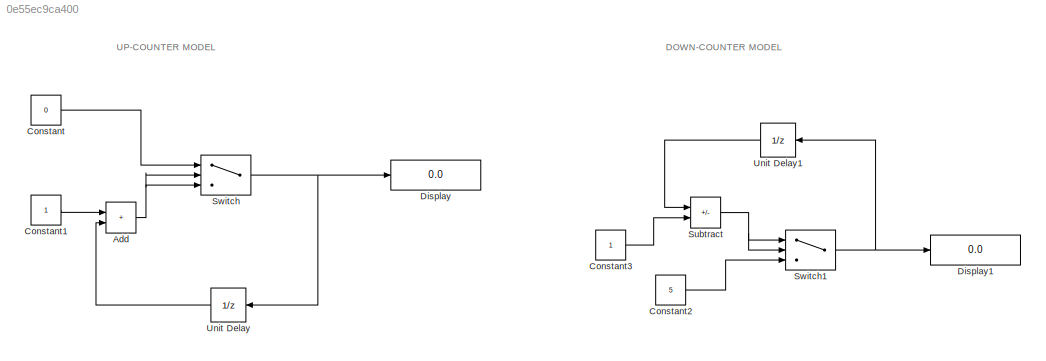
MODEL slx_0e55ec9ca400
KIND model
CONFIG AbsTol = auto
CONFIG EnableMultiTasking = off
CONFIG FixedStep = 0.5
CONFIG MaxStep = auto
CONFIG MinStep = auto
CONFIG RelTol = 1e-3
CONFIG SampleTimeConstraint = Unconstrained
CONFIG SolverName = FixedStepDiscrete
CONFIG StartTime = 0.0
CONFIG StopTime = 10.0
BLOCK [Sum] Add
  IconShape = rectangular
BLOCK [Constant] Constant
  Value = 0
BLOCK [Constant] Constant1
BLOCK [Constant] Constant2
  Value = 5
BLOCK [Constant] Constant3
BLOCK [Display] Display
  Decimation = 1
BLOCK [Display] Display1
  Decimation = 1
BLOCK [Sum] Subtract
  IconShape = rectangular
  Inputs = +-
BLOCK [Switch] Switch
  Criteria = u2 > Threshold
  InputSameDT = off
  SaturateOnIntegerOverflow = off
  Threshold = 5
BLOCK [Switch] Switch1
  InputSameDT = off
  SaturateOnIntegerOverflow = off
BLOCK [UnitDelay] Unit Delay
  HasFrameUpgradeWarning = on
  InitialCondition = -1
  NameLocation = top
  SampleTime = -1
BLOCK [UnitDelay] Unit Delay1
  HasFrameUpgradeWarning = on
  InitialCondition = 6
  NameLocation = top
  SampleTime = -1
ANNOTATION (root): DOWN-COUNTER MODEL
ANNOTATION (root): UP-COUNTER MODEL
NET Add:1 -> Switch:2, Switch:3
LINE Constant1:1 -> Add:1
LINE Constant2:1 -> Switch1:3
LINE Constant3:1 -> Subtract:2
LINE Constant:1 -> Switch:1
NET Subtract:1 -> Switch1:1, Switch1:2
NET Switch1:1 -> Display1:1, Unit Delay1:1
NET Switch:1 -> Display:1, Unit Delay:1
LINE Unit Delay1:1 -> Subtract:1
LINE Unit Delay:1 -> Add:2
note: NET lines group one-source signal fan-out (src -> all destinations, sorted); 1:1 wires keep LINE
